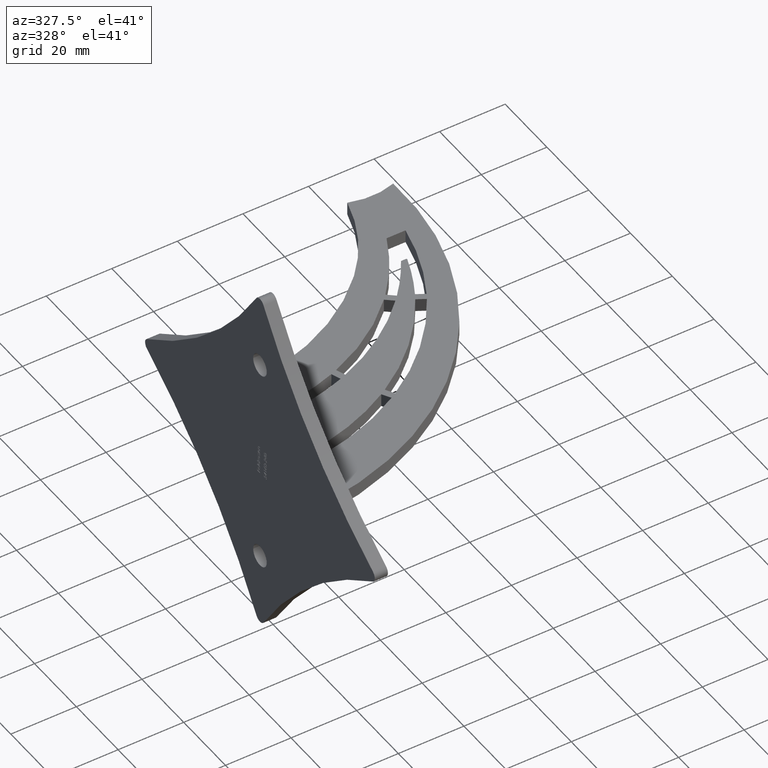
[diagram: clean part render]
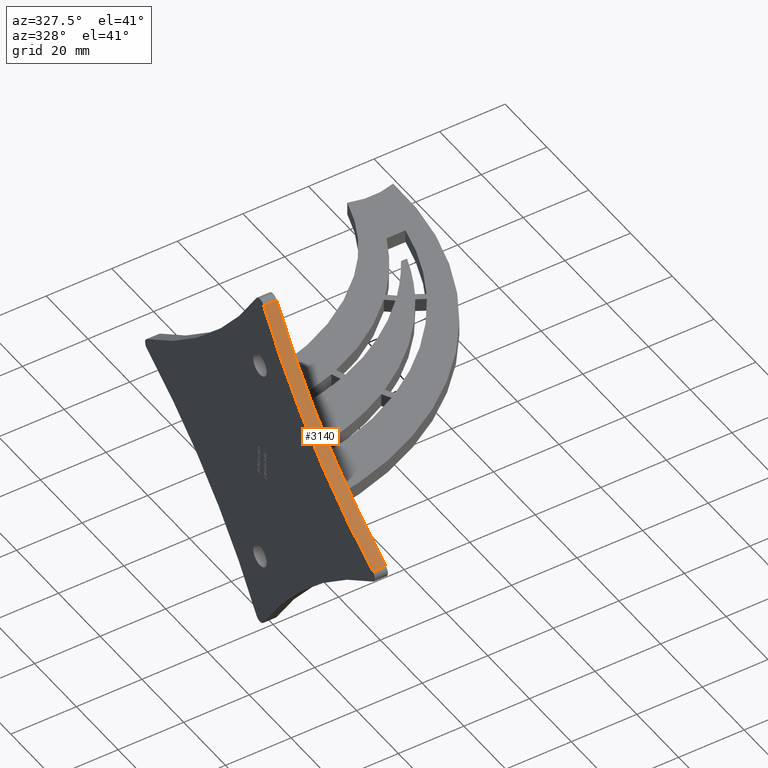
[diagram: same view with one face highlighted and labeled with its STEP entity id]
A machine part, auxiliary view. The second image highlights one B-rep face of the part: STEP entity #3140.
In plain terms, the highlighted cylindrical surface (partial cylindrical patch) has radius 160 mm, axis along (1, -0, -0).
Its self-contained STEP definition (entity closure, byte-faithful):
#564 = VERTEX_POINT ( 'NONE', #9453 ) ;
#693 = DIRECTION ( 'NONE',  ( -7.993822617735624192E-14, -1.000000000000000000, 0.000000000000000000 ) ) ;
#1020 = CARTESIAN_POINT ( 'NONE',  ( -4.000000000004320100, -54.04869051964687543, 1.703011507301732674 ) ) ;
#1716 = DIRECTION ( 'NONE',  ( 1.000000000000000000, -7.993605777301128353E-14, -0.000000000000000000 ) ) ;
#1769 = VERTEX_POINT ( 'NONE', #13455 ) ;
#1807 = DIRECTION ( 'NONE',  ( -7.993605777301127091E-14, -1.000000000000000000, 0.000000000000000000 ) ) ;
#1873 = EDGE_CURVE ( 'NONE', #6046, #564, #5024, .T. ) ;
#3096 = CYLINDRICAL_SURFACE ( 'NONE', #12897, 160.0000000000000000 ) ;
#3140 = ADVANCED_FACE ( 'NONE', ( #7068 ), #3096, .F. ) ;
#3452 = VECTOR ( 'NONE', #13450, 1000.000000000000000 ) ;
#3608 = ORIENTED_EDGE ( 'NONE', *, *, #4925, .T. ) ;
#3950 = DIRECTION ( 'NONE',  ( 7.993822617735624192E-14, 1.000000000000000000, 0.000000000000000000 ) ) ;
#4208 = CARTESIAN_POINT ( 'NONE',  ( -4.000000000000135891, -1.703011507301328331, 54.04869051964733728 ) ) ;
#4866 = EDGE_LOOP ( 'NONE', ( #11587, #9887, #7706, #3608 ) ) ;
#4925 = EDGE_CURVE ( 'NONE', #5253, #1769, #9901, .T. ) ;
#5024 = LINE ( 'NONE', #10211, #8821 ) ;
#5253 = VERTEX_POINT ( 'NONE', #5765 ) ;
#5765 = CARTESIAN_POINT ( 'NONE',  ( -4.000000000004320100, -54.04869051964687543, 1.703011507301732674 ) ) ;
#6046 = VERTEX_POINT ( 'NONE', #4208 ) ;
#6961 = CIRCLE ( 'NONE', #8536, 160.0000000000000000 ) ;
#7014 = DIRECTION ( 'NONE',  ( 1.000000000000000000, -7.993605777301128353E-14, -0.000000000000000000 ) ) ;
#7068 = FACE_OUTER_BOUND ( 'NONE', #4866, .T. ) ;
#7250 = CIRCLE ( 'NONE', #12165, 160.0000000000000000 ) ;
#7706 = ORIENTED_EDGE ( 'NONE', *, *, #10130, .F. ) ;
#7847 = CARTESIAN_POINT ( 'NONE',  ( -4.000000000011026735, -137.9439320914330551, 137.9439320914332825 ) ) ;
#8536 = AXIS2_PLACEMENT_3D ( 'NONE', #10165, #7014, #693 ) ;
#8821 = VECTOR ( 'NONE', #12367, 1000.000000000000000 ) ;
#9453 = CARTESIAN_POINT ( 'NONE',  ( -1.361320262357675507E-13, -1.703011507301648075, 54.04869051964733728 ) ) ;
#9887 = ORIENTED_EDGE ( 'NONE', *, *, #1873, .F. ) ;
#9901 = LINE ( 'NONE', #1020, #3452 ) ;
#10130 = EDGE_CURVE ( 'NONE', #5253, #6046, #6961, .T. ) ;
#10165 = CARTESIAN_POINT ( 'NONE',  ( -4.000000000011026735, -137.9439320914330551, 137.9439320914332825 ) ) ;
#10211 = CARTESIAN_POINT ( 'NONE',  ( -4.000000000000135891, -1.703011507301328331, 54.04869051964733728 ) ) ;
#10301 = CARTESIAN_POINT ( 'NONE',  ( -1.102669412509716313E-11, -137.9439320914333678, 137.9439320914332825 ) ) ;
#11587 = ORIENTED_EDGE ( 'NONE', *, *, #12350, .T. ) ;
#12165 = AXIS2_PLACEMENT_3D ( 'NONE', #10301, #1716, #1807 ) ;
#12350 = EDGE_CURVE ( 'NONE', #1769, #564, #7250, .T. ) ;
#12367 = DIRECTION ( 'NONE',  ( 1.000000000000000000, -7.993605777301128353E-14, -0.000000000000000000 ) ) ;
#12897 = AXIS2_PLACEMENT_3D ( 'NONE', #7847, #13444, #3950 ) ;
#13444 = DIRECTION ( 'NONE',  ( 1.000000000000000000, -7.993605777301128353E-14, -0.000000000000000000 ) ) ;
#13450 = DIRECTION ( 'NONE',  ( 1.000000000000000000, -7.993605777301128353E-14, -0.000000000000000000 ) ) ;
#13455 = CARTESIAN_POINT ( 'NONE',  ( -4.320439247934125394E-12, -54.04869051964719517, 1.703011507301732674 ) ) ;